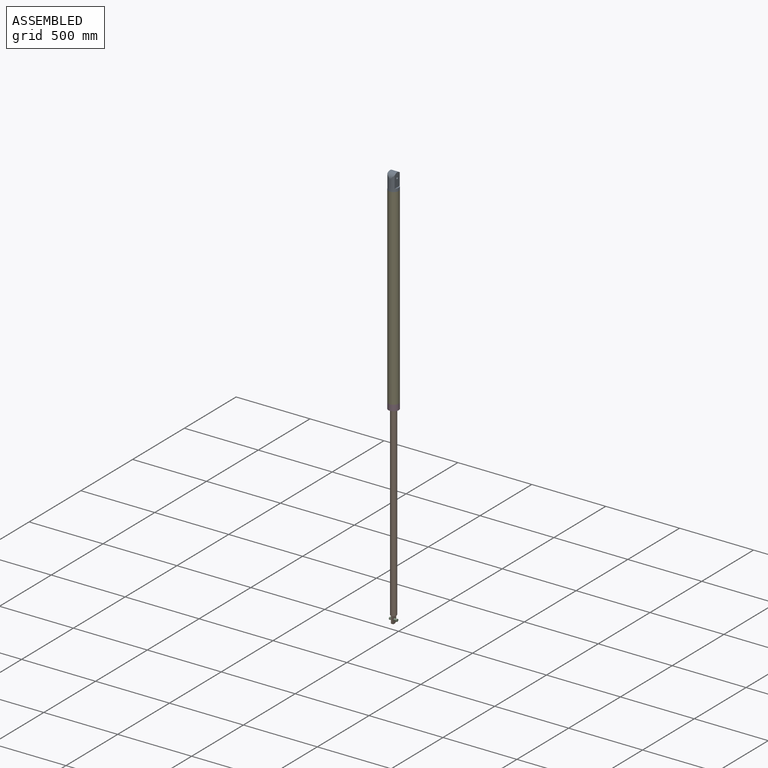
[diagram: assembled view]
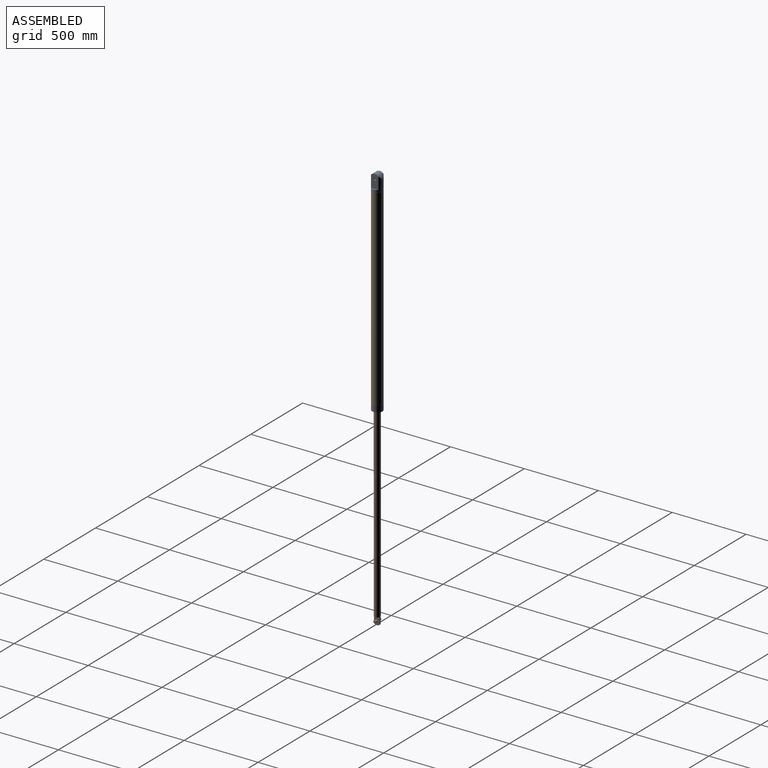
[diagram: assembled view, second angle]
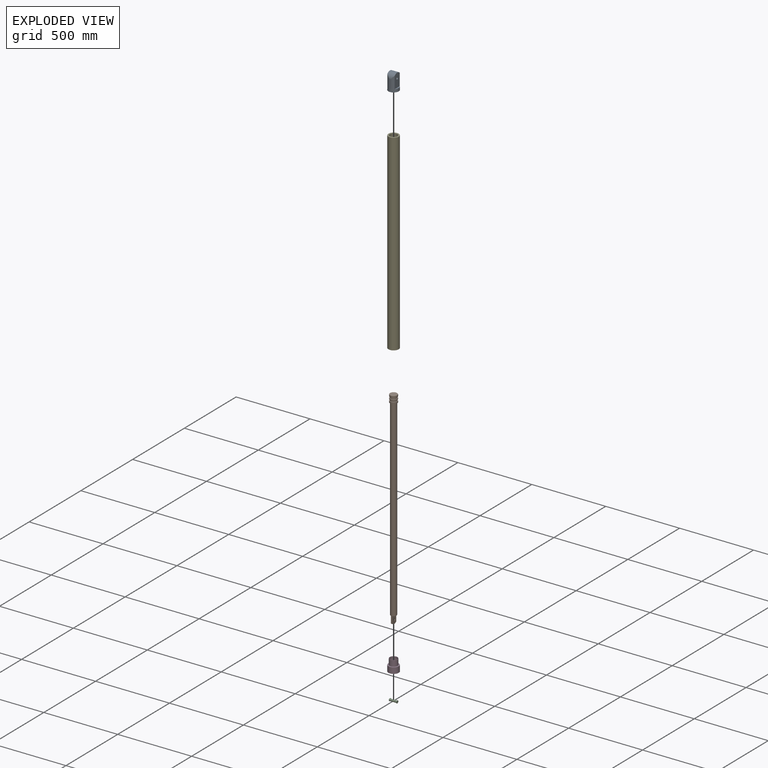
[diagram: exploded view]
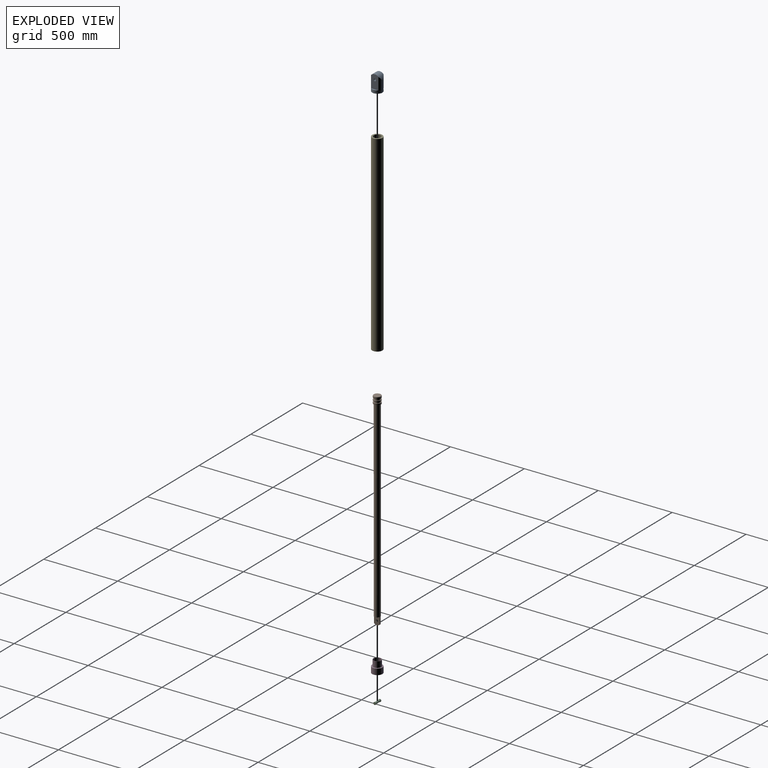
[diagram: exploded view, second angle]
ASSEMBLY  parts=5 mates=4
PART A: 18 faces, bbox 70x70x112.1 mm
  f0: plane 48.34x9.84mm, normal (0,0,1), area 327.6mm2, adj f2,f13
  f1: plane 70x70mm, normal (0,0,-1), area 3848.5mm2, adj f2
  f2: cone r=35mm half-angle=1.2deg, axis (0,0,-1), area 4373.7mm2, adj f0,f1,f3,f4,f5,f6,f7
  f3: plane 48.34x9.84mm, normal (0,0,1), area 327.6mm2, adj f2,f12
  f4: plane 24.75x10.42mm, normal (0,0,-1), area 9.7mm2, adj f2,f11,f13,f15
  f5: plane 24.75x10.42mm, normal (0,0,-1), area 9.7mm2, adj f2,f11,f12,f17
  f6: plane 24.75x10.42mm, normal (0,0,-1), area 9.7mm2, adj f2,f8,f13,f14
  f7: plane 24.75x10.42mm, normal (0,0,-1), area 9.7mm2, adj f2,f8,f12,f16
  f8: plane 57.5x10.62mm, normal (1,0,0), area 610.8mm2, adj f6,f7,f9,f14,f16
  f9: cylinder r=34.59mm len=69.19mm, axis (0,1,0), area 4254.2mm2, adj f8,f11,f12,f13,f14,f15,f16,f17
  f10: cylinder r=7.5mm len=49.5mm, axis (0,1,0), area 2332.6mm2, adj f12,f13
  f11: plane 57.5x10.62mm, normal (-1,0,0), area 610.8mm2, adj f4,f5,f9,f15,f17
  f12: plane 92.09x49.5mm, normal (0,-1,0), area 4221.5mm2, adj f3,f5,f7,f9,f10,f16,f17
  f13: plane 92.09x49.5mm, normal (0,1,0), area 4221.5mm2, adj f0,f4,f6,f9,f10,f14,f15
  f14: cylinder r=35mm len=81.67mm, axis (0,0,-1), area 1592.2mm2, adj f6,f8,f9,f13
  f15: cylinder r=35mm len=81.67mm, axis (0,0,-1), area 1592.2mm2, adj f4,f9,f11,f13
  f16: cylinder r=35mm len=81.67mm, axis (0,0,-1), area 1592.2mm2, adj f7,f8,f9,f12
  f17: cylinder r=35mm len=81.67mm, axis (0,0,-1), area 1592.2mm2, adj f5,f9,f11,f12
PART B: 19 faces, bbox 54.1x54.1x1405 mm
  f0: cylinder r=20mm len=1346.9mm, axis (0,0,-1), area 164208mm2, adj f1,f2,f3,f5,f16,f17
  f1: plane 55x38.97mm, normal (1,0,0), area 1868.8mm2, adj f0,f16,f17,f18
  f2: plane 55x38.97mm, normal (-1,0,0), area 1868.8mm2, adj f0,f3,f17,f18
  f3: plane 38.97x15.5mm, normal (0,0,-1), area 449.8mm2, adj f0,f2
  f4: cylinder r=25mm len=50mm, axis (0,0,-1), area 1570.8mm2, adj f5,f8
  f5: plane 50x50mm, normal (0,0,-1), area 706.9mm2, adj f0,f4
  f6: plane 50x50mm, normal (0,0,-1), area 706.9mm2, adj f7,f9
  f7: cylinder r=20mm len=40mm, axis (0,0,1), area 1256.6mm2, adj f6,f8
  f8: plane 50x50mm, normal (0,0,1), area 706.9mm2, adj f4,f7
  f9: cylinder r=25mm len=50mm, axis (0,0,-1), area 1099.6mm2, adj f6,f12
  f10: plane 50x50mm, normal (0,0,-1), area 706.9mm2, adj f11,f15
  f11: cylinder r=20mm len=40mm, axis (0,0,1), area 1256.6mm2, adj f10,f12
  f12: plane 50x50mm, normal (0,0,1), area 706.9mm2, adj f9,f11
  f13: plane 44x44mm, normal (0,0,1), area 1520.5mm2, adj f14
  f14: torus R=22mm, axis (0,0,1), area 707.9mm2, adj f13,f15
  f15: cylinder r=25mm len=50mm, axis (0,0,-1), area 1570.8mm2, adj f10,f14
  f16: plane 38.97x15.5mm, normal (0,0,-1), area 449.8mm2, adj f0,f1
  f17: cylinder r=27.5mm len=40mm, axis (1,0,0), area 398.7mm2, adj f0,f1,f2
  f18: cylinder r=7.5mm len=15mm, axis (1,0,0), area 424.1mm2, adj f1,f2
PART C: 9 faces, bbox 19.2x52.5x19.2 mm
  f0: cylinder r=7.15mm len=40.5mm, axis (0,-1,0), area 1819.5mm2, adj f7,f8
  f1: cylinder r=8.75mm len=17.5mm, axis (0,-1,0), area 274.9mm2, adj f2,f3
  f2: plane 17.5x17.5mm, normal (0,1,0), area 240.5mm2, adj f1
  f3: plane 17.5x17.5mm, normal (0,-1,0), area 31.9mm2, adj f1,f7
  f4: cylinder r=8.75mm len=17.5mm, axis (0,1,0), area 274.9mm2, adj f5,f6
  f5: plane 17.5x17.5mm, normal (0,-1,0), area 240.5mm2, adj f4
  f6: plane 17.5x17.5mm, normal (0,1,0), area 31.9mm2, adj f4,f8
  f7: torus R=8.15mm, axis (0,1,0), area 74.2mm2, adj f0,f3
  f8: torus R=8.15mm, axis (0,-1,0), area 74.2mm2, adj f0,f6
PART D: 16 faces, bbox 70x70x80 mm
  f0: cylinder r=25mm len=50mm, axis (0,0,1), area 6283.2mm2, adj f2,f3
  f1: cylinder r=26.5mm len=53mm, axis (0,0,1), area 6660.2mm2, adj f2,f4
  f2: plane 53x53mm, normal (0,0,1), area 242.7mm2, adj f0,f1
  f3: plane 50x50mm, normal (0,0,1), area 696.5mm2, adj f0,f5
  f4: plane 70x70mm, normal (0,0,1), area 1642.3mm2, adj f1,f15
  f5: cylinder r=20.08mm len=40.17mm, axis (0,0,1), area 1261.8mm2, adj f3,f6
  f6: plane 50x50mm, normal (0,0,-1), area 696.5mm2, adj f5,f7
  f7: cylinder r=25mm len=50mm, axis (0,0,1), area 785.4mm2, adj f6,f8
  f8: plane 50x50mm, normal (0,0,1), area 706.9mm2, adj f7,f9
  f9: cylinder r=20mm len=40mm, axis (0,0,1), area 1256.6mm2, adj f8,f10
  f10: plane 50x50mm, normal (0,0,-1), area 706.9mm2, adj f9,f11
  f11: cylinder r=25mm len=50mm, axis (0,0,1), area 785.4mm2, adj f10,f12
  f12: plane 50x50mm, normal (0,0,1), area 706.9mm2, adj f11,f13
  f13: cylinder r=20mm len=40mm, axis (0,0,1), area 1256.6mm2, adj f12,f14
  f14: plane 70x70mm, normal (0,0,-1), area 2591.8mm2, adj f13,f15
  f15: cylinder r=35mm len=70mm, axis (0,0,1), area 8796.5mm2, adj f4,f14
PART E: 6 faces, bbox 70x70x1300 mm
  f0: cylinder r=25mm len=1260mm, axis (0,0,-1), area 197920.3mm2, adj f2,f5
  f1: cylinder r=35mm len=1300mm, axis (0,0,-1), area 285884.9mm2, adj f2,f3
  f2: plane 70x70mm, normal (0,0,1), area 1885mm2, adj f0,f1
  f3: plane 70x70mm, normal (0,0,-1), area 1642.3mm2, adj f1,f4
  f4: cylinder r=26.5mm len=53mm, axis (0,0,-1), area 6660.2mm2, adj f3,f5
  f5: plane 53x53mm, normal (0,0,-1), area 242.7mm2, adj f0,f4
PLACE A rot(axis=(0,0,1),90deg) t=(61.43,149.4,89.02)mm
PLACE B t=(61.43,149.4,-1160.98)mm
PLACE C rot(axis=(0.58,-0.58,0.58),120deg) t=(62.68,149.16,-1413.48)mm
PLACE D t=(61.43,149.4,89.02)mm
PLACE E t=(61.43,149.4,89.02)mm fixed
MATE fastened E.f4 <-> D.f1  axis (0,0,-1) through (61.43,149.4,89.02)mm
MATE slider B.f4 <-> E.f1  axis (0,0,1) through (61.43,149.4,139.02)mm
MATE revolute B.f18 <-> C.f0  axis (1,0,0) through (61.43,149.4,-1238.48)mm
MATE revolute E.f0 <-> A.f2  axis (0,0,-1) through (61.43,149.4,1389.02)mm
